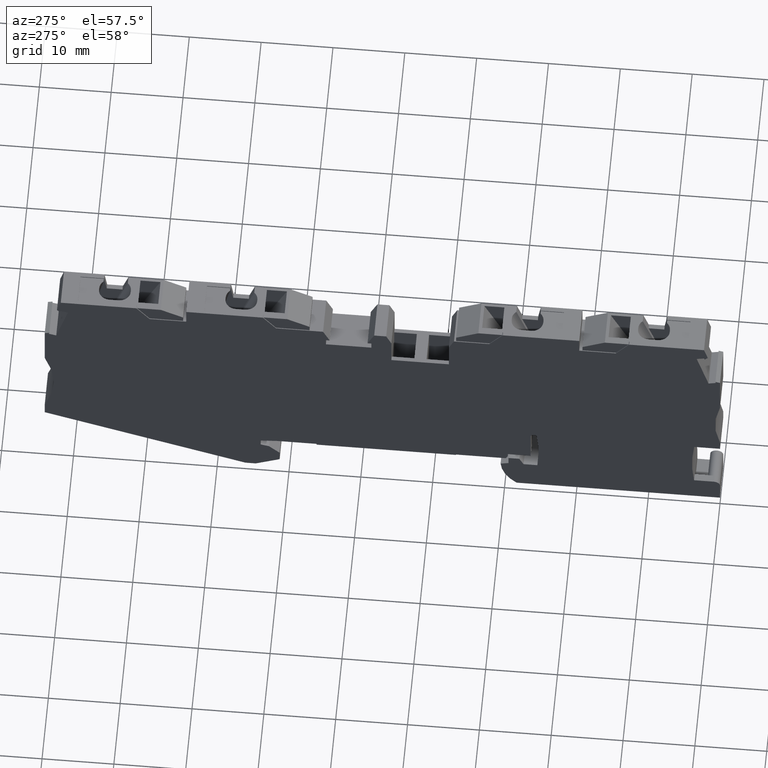
[diagram: clean part render]
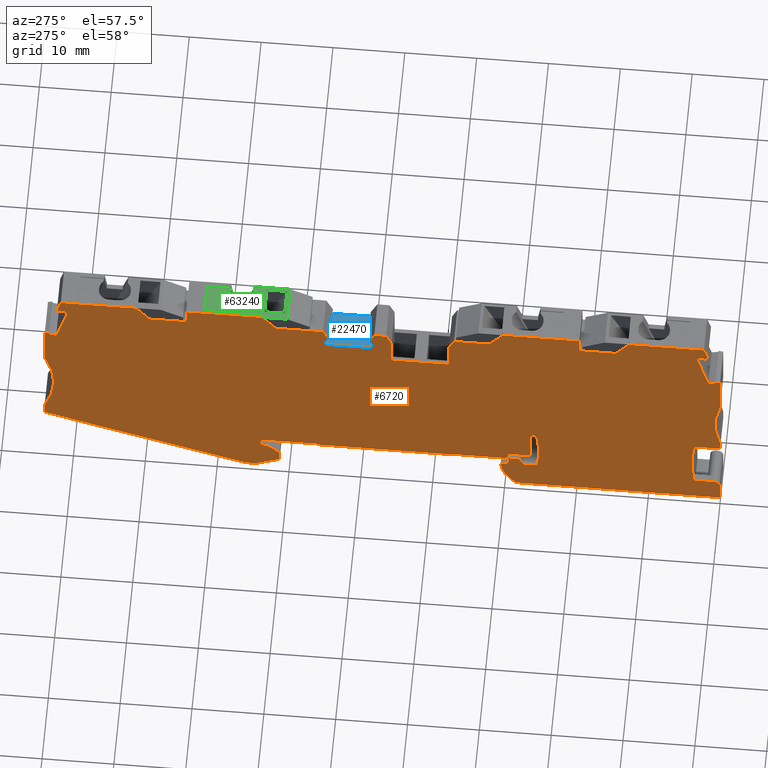
[diagram: same view with three faces highlighted in distinct colors, each labeled with its STEP entity id]
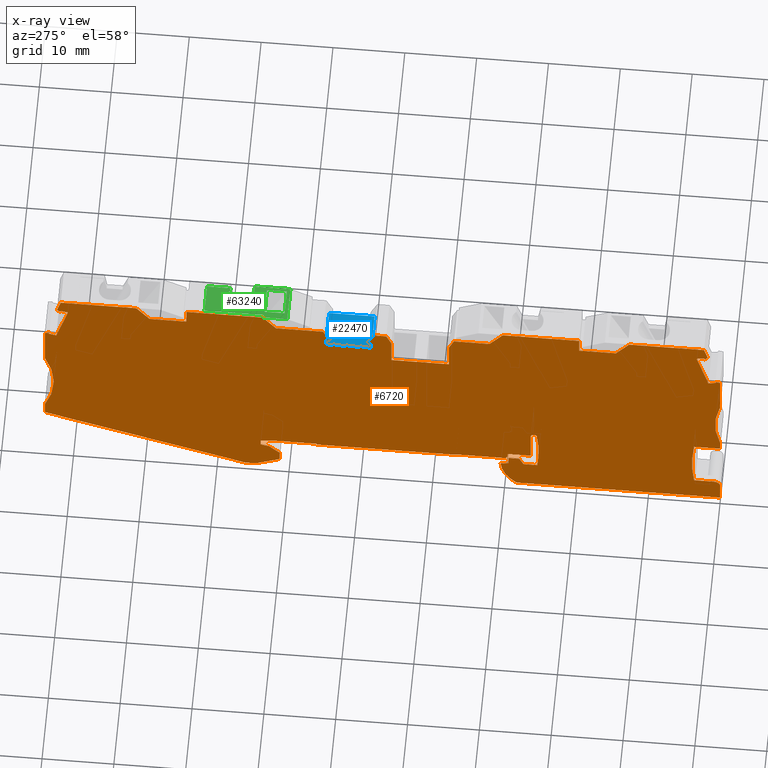
[diagram: x-ray of the same camera — body ghosted, the three highlighted faces saturated]
A machine part, auxiliary view with three faces highlighted in distinct colors.
The next image is the same camera in x-ray (body ghosted, the three faces saturated) — at least one of them is partly hidden behind the body in this view.
Their STEP definitions:

[orange] entity #6720 — the highlighted planar face has unit normal (-1, 0, 0).
#10=CARTESIAN_POINT('',(51.2005685226322,33.1653725649591,
-5.15000000004701));
#20=DIRECTION('',(7.41216508193737E-14,5.86845761098081E-13,-1.));
#30=DIRECTION('',(-0.992546151641485,-0.121869343403826,
-1.45087666858425E-13));
#40=AXIS2_PLACEMENT_3D('',#10,#20,#30);
#50=PLANE('',#40);
#60=CARTESIAN_POINT('',(-1.63215185893147E-12,18.1491444593517,
-5.15000000006688));
#70=DIRECTION('',(0.951056516295154,-0.309016994374947,
-1.10549333441268E-13));
#80=VECTOR('',#70,1.);
#90=LINE('',#60,#80);
#100=CARTESIAN_POINT('',(50.9335437868774,1.59983288405359,
-5.15000000007279));
#110=VERTEX_POINT('',#100);
#120=CARTESIAN_POINT('',(54.4182978726985,0.467567645042212,
-5.1500000000732));
#130=VERTEX_POINT('',#120);
#140=EDGE_CURVE('',#110,#130,#90,.T.);
#150=ORIENTED_EDGE('',*,*,#140,.F.);
#160=CARTESIAN_POINT('',(-2.54876470183464E-12,-6.21415916436365,
-5.15000000008117));
#170=DIRECTION('',(0.992546151641272,0.121869343405557,
1.45408273460483E-13));
#180=VECTOR('',#170,1.);
#190=LINE('',#160,#180);
#200=CARTESIAN_POINT('',(55.857590455135,0.64429055278808,
-5.15000000007299));
#210=VERTEX_POINT('',#200);
#220=EDGE_CURVE('',#130,#210,#190,.T.);
#230=ORIENTED_EDGE('',*,*,#220,.F.);
#240=CARTESIAN_POINT('',(-3.28099021208646E-12,-25.6765009430286,
-5.15000000009259));
#250=DIRECTION('',(0.904601039469285,0.426259263114703,
3.17498382901155E-13));
#260=VECTOR('',#250,1.);
#270=LINE('',#240,#260);
#280=CARTESIAN_POINT('',(82.4574372953299,13.1784692883305,
-5.15000000006365));
#290=VERTEX_POINT('',#280);
#300=EDGE_CURVE('',#210,#290,#270,.T.);
#310=ORIENTED_EDGE('',*,*,#300,.F.);
#320=CARTESIAN_POINT('',(84.0755498602694,3.26859023790299E-13,
-5.15000000007127));
#330=DIRECTION('',(-0.12186934340511,0.992546151641327,
5.73390757286388E-13));
#340=VECTOR('',#330,1.);
#350=LINE('',#320,#340);
#360=CARTESIAN_POINT('',(82.2135822231574,15.1645094743228,
-5.15000000005741));
#370=VERTEX_POINT('',#360);
#380=EDGE_CURVE('',#290,#370,#350,.T.);
#390=ORIENTED_EDGE('',*,*,#380,.F.);
#400=CARTESIAN_POINT('',(95.1276197746273,22.7952128573162,
-5.15000000005707));
#410=DIRECTION('',(-2.47610274017394E-14,-3.00054079505067E-15,1.));
#420=DIRECTION('',(0.992546151641327,0.12186934340511,
2.49421363947495E-14));
#430=AXIS2_PLACEMENT_3D('',#400,#410,#420);
#440=CIRCLE('',#430,15.);
#450=CARTESIAN_POINT('',(80.7511501013408,27.0750632908098,
-5.15000000005741));
#460=VERTEX_POINT('',#450);
#470=EDGE_CURVE('',#460,#370,#440,.T.);
#480=ORIENTED_EDGE('',*,*,#470,.T.);
#490=CARTESIAN_POINT('',(83.8121891997318,2.14490044393084,
-5.15000000006898));
#500=DIRECTION('',(-0.12186934340511,0.992546151641328,
-1.25369758141076E-16));
#510=VECTOR('',#500,1.);
#520=LINE('',#490,#510);
#530=CARTESIAN_POINT('',(79.9711959708161,33.4272799277346,
-5.15000000005196));
#540=VERTEX_POINT('',#530);
#550=EDGE_CURVE('',#460,#540,#520,.T.);
#560=ORIENTED_EDGE('',*,*,#550,.F.);
#570=CARTESIAN_POINT('',(84.3935909987457,32.8057528391582,
-5.1500000001018));
#580=DIRECTION('',(0.990268068742578,-0.139173100952904,
4.79939087970401E-14));
#590=VECTOR('',#580,1.);
#600=LINE('',#570,#590);
#610=CARTESIAN_POINT('',(79.3161911343738,33.5193348541774,
-5.15000000005195));
#620=VERTEX_POINT('',#610);
#630=EDGE_CURVE('',#620,#540,#600,.T.);
#640=ORIENTED_EDGE('',*,*,#630,.T.);
#650=CARTESIAN_POINT('',(88.5328933703175,10.7071963181875,
-5.15000000006885));
#660=DIRECTION('',(0.374606593416575,-0.927183854566521,
6.59579020590538E-15));
#670=VECTOR('',#660,1.);
#680=LINE('',#650,#670);
#690=CARTESIAN_POINT('',(79.4181993646877,33.2668556243879,
-5.15000000005209));
#700=VERTEX_POINT('',#690);
#710=EDGE_CURVE('',#620,#700,#680,.T.);
#720=ORIENTED_EDGE('',*,*,#710,.F.);
#730=CARTESIAN_POINT('',(83.8338176270039,35.0508812056414,
-5.15000000006889));
#740=DIRECTION('',(0.927183854566705,0.374606593416117,
2.41441940387461E-14));
#750=VECTOR('',#740,1.);
#760=LINE('',#730,#750);
#770=CARTESIAN_POINT('',(78.4261126403021,32.8660265694329,
-5.1500000000524));
#780=VERTEX_POINT('',#770);
#790=EDGE_CURVE('',#780,#700,#760,.T.);
#800=ORIENTED_EDGE('',*,*,#790,.T.);
#810=CARTESIAN_POINT('',(87.4844737959632,10.445795959572,
-5.15000000010178));
#820=DIRECTION('',(-0.374606593416094,0.927183854566715,
-1.29656948096796E-14));
#830=VECTOR('',#820,1.);
#840=LINE('',#810,#830);
#850=CARTESIAN_POINT('',(76.0567259369452,38.7304644495677,
-5.15000000004914));
#860=VERTEX_POINT('',#850);
#870=EDGE_CURVE('',#780,#860,#840,.T.);
#880=ORIENTED_EDGE('',*,*,#870,.F.);
#890=CARTESIAN_POINT('',(82.288623918383,41.2483146707968,
-5.15000000006892));
#900=DIRECTION('',(-0.927183854566836,-0.374606593415795,
-2.41441940387486E-14));
#910=VECTOR('',#900,1.);
#920=LINE('',#890,#910);
#930=CARTESIAN_POINT('',(77.0488126613319,39.1312935045226,
-5.15000000004883));
#940=VERTEX_POINT('',#930);
#950=EDGE_CURVE('',#940,#860,#920,.T.);
#960=ORIENTED_EDGE('',*,*,#950,.T.);
#970=CARTESIAN_POINT('',(88.5328933702817,10.7071963181785,
-5.15000000006885));
#980=DIRECTION('',(-0.374606593415338,0.927183854567021,
-6.59579020587315E-15));
#990=VECTOR('',#980,1.);
#1000=LINE('',#970,#990);
#1010=CARTESIAN_POINT('',(77.1508208916462,38.8788142747309,
-5.15000000004896));
#1020=VERTEX_POINT('',#1010);
#1030=EDGE_CURVE('',#1020,#940,#1000,.T.);
#1040=ORIENTED_EDGE('',*,*,#1030,.T.);
#1050=CARTESIAN_POINT('',(81.4935363772038,44.4372366214501,
-5.15000000010187));
#1060=DIRECTION('',(0.615661475326719,0.788010753605894,
3.50143361995355E-14));
#1070=VECTOR('',#1060,1.);
#1080=LINE('',#1050,#1070);
#1090=CARTESIAN_POINT('',(77.5276003492663,39.3610699886925,
-5.15000000004865));
#1100=VERTEX_POINT('',#1090);
#1110=EDGE_CURVE('',#1020,#1100,#1080,.T.);
#1120=ORIENTED_EDGE('',*,*,#1110,.F.);
#1130=CARTESIAN_POINT('',(89.0522040005949,10.8366750004898,
-5.1500000001017));
#1140=DIRECTION('',(-0.374606593416298,0.927183854566633,
-1.29518170218772E-14));
#1150=VECTOR('',#1140,1.);
#1160=LINE('',#1130,#1150);
#1170=CARTESIAN_POINT('',(76.7664159758295,41.2450674244096,
-5.15000000004761));
#1180=VERTEX_POINT('',#1170);
#1190=EDGE_CURVE('',#1100,#1180,#1160,.T.);
#1200=ORIENTED_EDGE('',*,*,#1190,.F.);
#1210=CARTESIAN_POINT('',(82.125376322098,41.9030650174223,
-5.15000000006892));
#1220=DIRECTION('',(0.99254615164132,0.121869343405168,
2.50286166997453E-14));
#1230=VECTOR('',#1220,1.);
#1240=LINE('',#1210,#1230);
#1250=CARTESIAN_POINT('',(66.3229877196629,39.962775671655,
-5.15000000004184));
#1260=VERTEX_POINT('',#1250);
#1270=EDGE_CURVE('',#1260,#1180,#1240,.T.);
#1280=ORIENTED_EDGE('',*,*,#1270,.T.);
#1290=CARTESIAN_POINT('',(43.6250560928359,-0.477025041583218,
-5.15000000006994));
#1300=DIRECTION('',(0.489450898605579,0.872030858315343,
1.47204826611017E-14));
#1310=VECTOR('',#1300,1.);
#1320=LINE('',#1290,#1310);
#1330=CARTESIAN_POINT('',(64.8046171261849,37.2575686414021,
-5.15000000004354));
#1340=VERTEX_POINT('',#1330);
#1350=EDGE_CURVE('',#1340,#1260,#1320,.T.);
#1360=ORIENTED_EDGE('',*,*,#1350,.T.);
#1370=CARTESIAN_POINT('',(-0.0992546151653457,29.2883752487445,
-5.15000000006028));
#1380=DIRECTION('',(-0.992546151641327,-0.12186934340511,
-1.45408273460483E-13));
#1390=VECTOR('',#1380,1.);
#1400=LINE('',#1370,#1390);
#1410=CARTESIAN_POINT('',(59.72946532427,36.6344183558886,
-5.15000000004428));
#1420=VERTEX_POINT('',#1410);
#1430=EDGE_CURVE('',#1340,#1420,#1400,.T.);
#1440=ORIENTED_EDGE('',*,*,#1430,.F.);
#1450=CARTESIAN_POINT('',(64.2283544797226,-0.00609346716925809,
-5.15000000007268));
#1460=DIRECTION('',(-0.121869343405168,0.99254615164132,
5.73383818392483E-13));
#1470=VECTOR('',#1460,1.);
#1480=LINE('',#1450,#1470);
#1490=CARTESIAN_POINT('',(59.4247919657574,39.1157837349896,
-5.15000000004285));
#1500=VERTEX_POINT('',#1490);
#1510=EDGE_CURVE('',#1420,#1500,#1480,.T.);
#1520=ORIENTED_EDGE('',*,*,#1510,.F.);
#1530=CARTESIAN_POINT('',(-0.099254615165251,31.8071498123857,
-5.1500000000588));
#1540=DIRECTION('',(0.99254615164132,0.121869343405168,
1.45408273460483E-13));
#1550=VECTOR('',#1540,1.);
#1560=LINE('',#1530,#1550);
#1570=CARTESIAN_POINT('',(48.8541754507756,37.8178752277244,
-5.15000000004439));
#1580=VERTEX_POINT('',#1570);
#1590=EDGE_CURVE('',#1580,#1500,#1560,.T.);
#1600=ORIENTED_EDGE('',*,*,#1590,.T.);
#1610=CARTESIAN_POINT('',(26.1562438239486,-2.62192548551382,
-5.1500000000705));
#1620=DIRECTION('',(0.489450898605579,0.872030858315343,
1.47204826611017E-14));
#1630=VECTOR('',#1620,1.);
#1640=LINE('',#1610,#1630);
#1650=CARTESIAN_POINT('',(47.3358048572975,35.1126681974713,
-5.15000000004609));
#1660=VERTEX_POINT('',#1650);
#1670=EDGE_CURVE('',#1660,#1580,#1640,.T.);
#1680=ORIENTED_EDGE('',*,*,#1670,.T.);
#1690=CARTESIAN_POINT('',(-1.14655395558325E-12,29.3005621830843,
-5.15000000007111));
#1700=DIRECTION('',(-0.992546151641327,-0.12186934340511,
-2.50403622964061E-14));
#1710=VECTOR('',#1700,1.);
#1720=LINE('',#1690,#1710);
#1730=CARTESIAN_POINT('',(40.8310435482311,34.3139839363598,
-5.15000000005435));
#1740=VERTEX_POINT('',#1730);
#1750=EDGE_CURVE('',#1660,#1740,#1720,.T.);
#1760=ORIENTED_EDGE('',*,*,#1750,.F.);
#1770=CARTESIAN_POINT('',(30.5211237682836,1.58665719895707E-12,
-5.15000000007043));
#1780=DIRECTION('',(0.287750497361325,0.957705409438786,
9.95947716779486E-15));
#1790=VECTOR('',#1780,1.);
#1800=LINE('',#1770,#1790);
#1810=CARTESIAN_POINT('',(40.1694208776444,32.1119387046792,
-5.15000000005569));
#1820=VERTEX_POINT('',#1810);
#1830=EDGE_CURVE('',#1820,#1740,#1800,.T.);
#1840=ORIENTED_EDGE('',*,*,#1830,.T.);
#1850=CARTESIAN_POINT('',(-1.22613842412255E-12,27.179754000494,
-5.15000000007111));
#1860=DIRECTION('',(-0.992546151641324,-0.121869343405136,
-2.50403622964061E-14));
#1870=VECTOR('',#1860,1.);
#1880=LINE('',#1850,#1870);
#1890=CARTESIAN_POINT('',(40.6933844696089,32.1762733442477,
-5.15000000005561));
#1900=VERTEX_POINT('',#1890);
#1910=EDGE_CURVE('',#1900,#1820,#1880,.T.);
#1920=ORIENTED_EDGE('',*,*,#1910,.T.);
#1930=CARTESIAN_POINT('',(44.6441340636737,1.05668363616181E-12,
-5.15000000007008));
#1940=DIRECTION('',(-0.121869343405136,0.992546151641324,
-1.25369758141743E-16));
#1950=VECTOR('',#1940,1.);
#1960=LINE('',#1930,#1950);
#1970=CARTESIAN_POINT('',(40.8237846670524,31.1142489619915,
-5.15000000005623));
#1980=VERTEX_POINT('',#1970);
#1990=EDGE_CURVE('',#1980,#1900,#1960,.T.);
#2000=ORIENTED_EDGE('',*,*,#1990,.T.);
#2010=CARTESIAN_POINT('',(-1.26659228699043E-12,26.1017184872555,
-5.15000000007112));
#2020=DIRECTION('',(0.992546151641331,0.121869343405079,
2.50403622964061E-14));
#2030=VECTOR('',#2020,1.);
#2040=LINE('',#2010,#2030);
#2050=CARTESIAN_POINT('',(34.5459302579209,30.3434253649544,
-5.15000000005715));
#2060=VERTEX_POINT('',#2050);
#2070=EDGE_CURVE('',#2060,#1980,#2040,.T.);
#2080=ORIENTED_EDGE('',*,*,#2070,.T.);
#2090=CARTESIAN_POINT('',(38.2716344176464,1.29581511526432E-12,
-5.15000000007024));
#2100=DIRECTION('',(0.121869343405136,-0.992546151641324,
1.25369758141743E-16));
#2110=VECTOR('',#2100,1.);
#2120=LINE('',#2090,#2110);
#2130=CARTESIAN_POINT('',(34.4155300604775,31.4054497472102,
-5.15000000005653));
#2140=VERTEX_POINT('',#2130);
#2150=EDGE_CURVE('',#2140,#2060,#2120,.T.);
#2160=ORIENTED_EDGE('',*,*,#2150,.T.);
#2170=CARTESIAN_POINT('',(-1.22613842412255E-12,27.179754000494,
-5.15000000007111));
#2180=DIRECTION('',(-0.992546151641324,-0.121869343405136,
-2.50403622964061E-14));
#2190=VECTOR('',#2180,1.);
#2200=LINE('',#2170,#2190);
#2210=CARTESIAN_POINT('',(34.9394936524406,31.4697843867785,
-5.15000000005646));
#2220=VERTEX_POINT('',#2210);
#2230=EDGE_CURVE('',#2220,#2140,#2200,.T.);
#2240=ORIENTED_EDGE('',*,*,#2230,.T.);
#2250=CARTESIAN_POINT('',(53.6422195780374,7.19025634174782E-13,
-5.15000000006986));
#2260=DIRECTION('',(0.510892985900211,-0.859644320028911,
1.01890289076771E-14));
#2270=VECTOR('',#2260,1.);
#2280=LINE('',#2250,#2270);
#2290=CARTESIAN_POINT('',(33.7648010461208,33.4463584535049,
-5.15000000005538));
#2300=VERTEX_POINT('',#2290);
#2310=EDGE_CURVE('',#2300,#2220,#2280,.T.);
#2320=ORIENTED_EDGE('',*,*,#2310,.T.);
#2330=CARTESIAN_POINT('',(-1.15365938294104E-12,29.3005621830791,
-5.15000000007111));
#2340=DIRECTION('',(-0.992546151641309,-0.121869343405257,
-2.50403622964062E-14));
#2350=VECTOR('',#2340,1.);
#2360=LINE('',#2330,#2350);
#2370=CARTESIAN_POINT('',(32.1054168262366,33.242611690697,
-5.15000000005563));
#2380=VERTEX_POINT('',#2370);
#2390=EDGE_CURVE('',#2300,#2380,#2360,.T.);
#2400=ORIENTED_EDGE('',*,*,#2390,.F.);
#2410=CARTESIAN_POINT('',(22.628984575643,1.88281396996538E-12,
-5.15000000007063));
#2420=DIRECTION('',(-0.274147194873179,-0.961687743263461,
-9.63283387656871E-15));
#2430=VECTOR('',#2420,1.);
#2440=LINE('',#2410,#2430);
#2450=CARTESIAN_POINT('',(31.5994505786971,31.4677201438811,
-5.15000000005671));
#2460=VERTEX_POINT('',#2450);
#2470=EDGE_CURVE('',#2380,#2460,#2440,.T.);
#2480=ORIENTED_EDGE('',*,*,#2470,.F.);
#2490=CARTESIAN_POINT('',(35.4632007791786,1.40120309913761E-12,
-5.15000000007031));
#2500=DIRECTION('',(0.121869343405142,-0.992546151641324,
1.25369758141894E-16));
#2510=VECTOR('',#2500,1.);
#2520=LINE('',#2490,#2510);
#2530=CARTESIAN_POINT('',(32.1234887553389,27.1997716918253,
-5.15000000005917));
#2540=VERTEX_POINT('',#2530);
#2550=EDGE_CURVE('',#2460,#2540,#2520,.T.);
#2560=ORIENTED_EDGE('',*,*,#2550,.F.);
#2570=CARTESIAN_POINT('',(-1.37339804643165E-12,23.2555032303318,
-5.15000000007112));
#2580=DIRECTION('',(-0.992546151641324,-0.121869343405136,
-2.50403622964061E-14));
#2590=VECTOR('',#2580,1.);
#2600=LINE('',#2570,#2590);
#2610=CARTESIAN_POINT('',(24.1831195422086,26.2248169445842,
-5.15000000006034));
#2620=VERTEX_POINT('',#2610);
#2630=EDGE_CURVE('',#2540,#2620,#2600,.T.);
#2640=ORIENTED_EDGE('',*,*,#2630,.F.);
#2650=CARTESIAN_POINT('',(27.4031221755072,1.71076731429297E-12,
-5.15000000010402));
#2660=DIRECTION('',(0.121869343405144,-0.992546151641323,
1.26713462326608E-16));
#2670=VECTOR('',#2660,1.);
#2680=LINE('',#2650,#2670);
#2690=CARTESIAN_POINT('',(23.6590813655666,30.4927653966404,
-5.15000000005787));
#2700=VERTEX_POINT('',#2690);
#2710=EDGE_CURVE('',#2700,#2620,#2680,.T.);
#2720=ORIENTED_EDGE('',*,*,#2710,.T.);
#2730=CARTESIAN_POINT('',(41.2011308712342,1.19298961145134E-12,
-5.15000000007017));
#2740=DIRECTION('',(-0.498657173381242,0.866799298243504,
-9.86466764618313E-15));
#2750=VECTOR('',#2740,1.);
#2760=LINE('',#2730,#2750);
#2770=CARTESIAN_POINT('',(22.7387593504496,32.0925307654054,
-5.150000000057));
#2780=VERTEX_POINT('',#2770);
#2790=EDGE_CURVE('',#2700,#2780,#2760,.T.);
#2800=ORIENTED_EDGE('',*,*,#2790,.F.);
#2810=CARTESIAN_POINT('',(-1.13234310086805E-12,29.3005621830843,
-5.15000000007111));
#2820=DIRECTION('',(0.992546151641327,0.12186934340511,
2.50394313100733E-14));
#2830=VECTOR('',#2820,1.);
#2840=LINE('',#2810,#2830);
#2850=CARTESIAN_POINT('',(17.8308512977738,31.4899154302059,
-5.15000000005772));
#2860=VERTEX_POINT('',#2850);
#2870=EDGE_CURVE('',#2860,#2780,#2840,.T.);
#2880=ORIENTED_EDGE('',*,*,#2870,.T.);
#2890=CARTESIAN_POINT('',(47.5101132863039,9.56241650627543E-13,
-5.15000000007001));
#2900=DIRECTION('',(-0.68587547340398,0.727718925810555,
-1.49273732731986E-14));
#2910=VECTOR('',#2900,1.);
#2920=LINE('',#2890,#2910);
#2930=CARTESIAN_POINT('',(15.70313398727,33.7474391581558,
-5.15000000005655));
#2940=VERTEX_POINT('',#2930);
#2950=EDGE_CURVE('',#2860,#2940,#2920,.T.);
#2960=ORIENTED_EDGE('',*,*,#2950,.F.);
#2970=CARTESIAN_POINT('',(-1.11784255141336E-12,31.8193367467299,
-5.15000000005885));
#2980=DIRECTION('',(-0.992546151641327,-0.12186934340511,
-1.45408273460483E-13));
#2990=VECTOR('',#2980,1.);
#3000=LINE('',#2970,#2990);
#3010=CARTESIAN_POINT('',(5.13251747228711,32.4495306508911,
-5.1500000000581));
#3020=VERTEX_POINT('',#3010);
#3030=EDGE_CURVE('',#2940,#3020,#3000,.T.);
#3040=ORIENTED_EDGE('',*,*,#3030,.F.);
#3050=CARTESIAN_POINT('',(9.11681884476174,3.14700757990334E-12,
-5.15000000007685));
#3060=DIRECTION('',(0.121869343405148,-0.992546151641322,
-5.73383818392484E-13));
#3070=VECTOR('',#3060,1.);
#3080=LINE('',#3050,#3070);
#3090=CARTESIAN_POINT('',(5.43719083079988,29.9681652717886,
-5.15000000005953));
#3100=VERTEX_POINT('',#3090);
#3110=EDGE_CURVE('',#3020,#3100,#3080,.T.);
#3120=ORIENTED_EDGE('',*,*,#3110,.F.);
#3130=CARTESIAN_POINT('',(-1.21260560773257E-12,29.3005621830836,
-5.15000000006033));
#3140=DIRECTION('',(0.992546151641327,0.12186934340511,
1.45408273460483E-13));
#3150=VECTOR('',#3140,1.);
#3160=LINE('',#3130,#3150);
#3170=CARTESIAN_POINT('',(0.362039028886562,29.3450149862753,
-5.15000000006028));
#3180=VERTEX_POINT('',#3170);
#3190=EDGE_CURVE('',#3180,#3100,#3160,.T.);
#3200=ORIENTED_EDGE('',*,*,#3190,.T.);
#3210=CARTESIAN_POINT('',(30.0413010174166,-2.14490044392964,
-5.15000000006138));
#3220=DIRECTION('',(-0.68587547340398,0.727718925810555,
-1.49273732731986E-14));
#3230=VECTOR('',#3220,1.);
#3240=LINE('',#3210,#3230);
#3250=CARTESIAN_POINT('',(-1.76567828161728,31.6025387142252,
-5.15000000005911));
#3260=VERTEX_POINT('',#3250);
#3270=EDGE_CURVE('',#3180,#3260,#3240,.T.);
#3280=ORIENTED_EDGE('',*,*,#3270,.F.);
#3290=CARTESIAN_POINT('',(-17.4688122688883,29.6744363027993,
-5.15000000006247));
#3300=DIRECTION('',(-0.992546151641327,-0.12186934340511,
-2.50394313100733E-14));
#3310=VECTOR('',#3300,1.);
#3320=LINE('',#3290,#3310);
#3330=CARTESIAN_POINT('',(-12.1098519226198,30.3324338958117,
-5.15000000006063));
#3340=VERTEX_POINT('',#3330);
#3350=EDGE_CURVE('',#3260,#3340,#3320,.T.);
#3360=ORIENTED_EDGE('',*,*,#3350,.F.);
#3370=CARTESIAN_POINT('',(-16.6742435996497,-2.14490044392789,
-5.15000000009541));
#3380=DIRECTION('',(0.139173100960494,0.990268068741511,
2.25907981490279E-18));
#3390=VECTOR('',#3380,1.);
#3400=LINE('',#3370,#3390);
#3410=CARTESIAN_POINT('',(-12.39264563612,28.3202520690979,
-5.15000000006183));
#3420=VERTEX_POINT('',#3410);
#3430=EDGE_CURVE('',#3420,#3340,#3400,.T.);
#3440=ORIENTED_EDGE('',*,*,#3430,.T.);
#3450=CARTESIAN_POINT('',(-17.4688122688882,32.2861880970218,
-5.15000000009541));
#3460=DIRECTION('',(-0.78801075360754,0.615661475324612,
-3.92405713910446E-16));
#3470=VECTOR('',#3460,1.);
#3480=LINE('',#3450,#3470);
#3490=CARTESIAN_POINT('',(-11.9103899221574,27.9434726114791,
-5.15000000006201));
#3500=VERTEX_POINT('',#3490);
#3510=EDGE_CURVE('',#3500,#3420,#3480,.T.);
#3520=ORIENTED_EDGE('',*,*,#3510,.T.);
#3530=CARTESIAN_POINT('',(-16.1390349861827,-2.14490044392791,
-5.15000000006253));
#3540=DIRECTION('',(0.139173100959469,0.990268068741655,
6.35828589576885E-15));
#3550=VECTOR('',#3540,1.);
#3560=LINE('',#3530,#3550);
#3570=CARTESIAN_POINT('',(-11.8724920261091,28.213130153564,
-5.15000000006185));
#3580=VERTEX_POINT('',#3570);
#3590=EDGE_CURVE('',#3500,#3580,#3560,.T.);
#3600=ORIENTED_EDGE('',*,*,#3590,.F.);
#3610=CARTESIAN_POINT('',(-17.4688122688883,28.9996416717454,
-5.15000000006247));
#3620=DIRECTION('',(0.990268068741586,-0.139173100959957,
2.42190292353126E-14));
#3630=VECTOR('',#3620,1.);
#3640=LINE('',#3610,#3630);
#3650=CARTESIAN_POINT('',(-10.8129051925554,28.0642149355368,
-5.15000000006186));
#3660=VERTEX_POINT('',#3650);
#3670=EDGE_CURVE('',#3580,#3660,#3640,.T.);
#3680=ORIENTED_EDGE('',*,*,#3670,.F.);
#3690=CARTESIAN_POINT('',(-15.0585194836128,-2.14490044392795,
-5.15000000009541));
#3700=DIRECTION('',(0.139173100960276,0.990268068741541,
-1.16187079982452E-17));
#3710=VECTOR('',#3700,1.);
#3720=LINE('',#3690,#3710);
#3730=CARTESIAN_POINT('',(-11.6931750561292,21.8007694007463,
-5.1500000000656));
#3740=VERTEX_POINT('',#3730);
#3750=EDGE_CURVE('',#3740,#3660,#3720,.T.);
#3760=ORIENTED_EDGE('',*,*,#3750,.T.);
#3770=CARTESIAN_POINT('',(-17.4688122688886,22.6124822755671,
-5.15000000006249));
#3780=DIRECTION('',(-0.990268068741538,0.139173100960301,
-2.42190292353103E-14));
#3790=VECTOR('',#3780,1.);
#3800=LINE('',#3770,#3790);
#3810=CARTESIAN_POINT('',(-12.7527618896818,21.9496846187737,
-5.15000000006559));
#3820=VERTEX_POINT('',#3810);
#3830=EDGE_CURVE('',#3740,#3820,#3800,.T.);
#3840=ORIENTED_EDGE('',*,*,#3830,.F.);
#3850=CARTESIAN_POINT('',(-16.1390349862196,-2.14490044392791,
-5.15000000006253));
#3860=DIRECTION('',(-0.13917310096079,-0.990268068741469,
-6.3582858958012E-15));
#3870=VECTOR('',#3860,1.);
#3880=LINE('',#3850,#3870);
#3890=CARTESIAN_POINT('',(-12.7148639936335,22.2193421608562,
-5.15000000006543));
#3900=VERTEX_POINT('',#3890);
#3910=EDGE_CURVE('',#3900,#3820,#3880,.T.);
#3920=ORIENTED_EDGE('',*,*,#3910,.T.);
#3930=CARTESIAN_POINT('',(-17.4688122688887,20.2986223814295,
-5.15000000009541));
#3940=DIRECTION('',(-0.927183854569503,-0.374606593409191,
-3.66909218123641E-16));
#3950=VECTOR('',#3940,1.);
#3960=LINE('',#3930,#3950);
#3970=CARTESIAN_POINT('',(-13.3281422848193,21.971561647487,
-5.15000000006562));
#3980=VERTEX_POINT('',#3970);
#3990=EDGE_CURVE('',#3900,#3980,#3960,.T.);
#4000=ORIENTED_EDGE('',*,*,#3990,.F.);
#4010=CARTESIAN_POINT('',(-10.3670130763943,-2.14490044392813,
-5.1500000000954));
#4020=DIRECTION('',(-0.12186934340511,0.992546151641327,
-1.2671346232575E-16));
#4030=VECTOR('',#4020,1.);
#4040=LINE('',#4010,#4030);
#4050=CARTESIAN_POINT('',(-12.5481881546684,15.6193450136062,
-5.15000000006929));
#4060=VERTEX_POINT('',#4050);
#4070=EDGE_CURVE('',#4060,#3980,#4040,.T.);
#4080=ORIENTED_EDGE('',*,*,#4070,.T.);
#4090=CARTESIAN_POINT('',(-26.2022063583376,9.40904816934251,
-5.15000000007395));
#4100=DIRECTION('',(-2.48736047506293E-14,-2.91886266429657E-15,1.));
#4110=DIRECTION('',(-0.992546151641323,-0.121869343405144,
-2.50439205489866E-14));
#4120=AXIS2_PLACEMENT_3D('',#4090,#4100,#4110);
#4130=CIRCLE('',#4120,15.);
#4140=CARTESIAN_POINT('',(-11.451364064022,6.68642964883118,
-5.15000000007445));
#4150=VERTEX_POINT('',#4140);
#4160=EDGE_CURVE('',#4150,#4060,#4130,.T.);
#4170=ORIENTED_EDGE('',*,*,#4160,.T.);
#4180=CARTESIAN_POINT('',(-10.6303737355825,3.88994994149725E-12,
-5.15000000007832));
#4190=DIRECTION('',(0.121869343405148,-0.992546151641322,
-5.73383818392484E-13));
#4200=VECTOR('',#4190,1.);
#4210=LINE('',#4180,#4200);
#4220=CARTESIAN_POINT('',(-11.2563731145735,5.09835580620357,
-5.15000000007537));
#4230=VERTEX_POINT('',#4220);
#4240=EDGE_CURVE('',#4150,#4230,#4210,.T.);
#4250=ORIENTED_EDGE('',*,*,#4240,.F.);
#4260=CARTESIAN_POINT('',(-2.07115889798503E-12,6.48046463643549,
-5.15000000007372));
#4270=DIRECTION('',(-0.992546151641322,-0.121869343405148,
-1.45408273460483E-13));
#4280=VECTOR('',#4270,1.);
#4290=LINE('',#4260,#4280);
#4300=CARTESIAN_POINT('',(-7.683206968647,5.53708544246428,
-5.15000000009808));
#4310=VERTEX_POINT('',#4300);
#4320=EDGE_CURVE('',#4310,#4230,#4290,.T.);
#4330=ORIENTED_EDGE('',*,*,#4320,.T.);
#4340=CARTESIAN_POINT('',(-38.3066176594339,-2.60566433329628,
-5.15000000008191));
#4350=DIRECTION('',(5.11484905320667E-13,6.28767212301405E-14,1.));
#4360=DIRECTION('',(0.992546151641322,0.121869343405148,
-5.15335119130525E-13));
#4370=AXIS2_PLACEMENT_3D('',#4340,#4350,#4360);
#4380=CIRCLE('',#4370,31.6874999999566);
#4390=CARTESIAN_POINT('',(-6.62153597596452,-2.99714224981677,
-5.15000000009809));
#4400=VERTEX_POINT('',#4390);
#4410=EDGE_CURVE('',#4400,#4310,#4380,.T.);
#4420=ORIENTED_EDGE('',*,*,#4410,.T.);
#4430=CARTESIAN_POINT('',(-2.397143811723E-12,-2.18411986250547,
-5.15000000007881));
#4440=DIRECTION('',(-0.992546151641322,-0.121869343405148,
-1.45408273460483E-13));
#4450=VECTOR('',#4440,1.);
#4460=LINE('',#4430,#4450);
#4470=CARTESIAN_POINT('',(-9.31500522479441,-3.32785868883982,
-5.15000000008069));
#4480=VERTEX_POINT('',#4470);
#4490=EDGE_CURVE('',#4400,#4480,#4460,.T.);
#4500=ORIENTED_EDGE('',*,*,#4490,.F.);
#4510=CARTESIAN_POINT('',(-9.20532281572975,-4.22115022531683,
-5.15000000003736));
#4520=DIRECTION('',(5.11484905320667E-13,6.28767212301405E-14,1.));
#4530=DIRECTION('',(0.992546151641322,0.121869343405148,
-5.15335119130526E-13));
#4540=AXIS2_PLACEMENT_3D('',#4510,#4520,#4530);
#4550=CIRCLE('',#4540,0.899999999999821);
#4560=CARTESIAN_POINT('',(-10.0986143522068,-4.33083263438148,
-5.15000000008082));
#4570=VERTEX_POINT('',#4560);
#4580=EDGE_CURVE('',#4480,#4570,#4550,.T.);
#4590=ORIENTED_EDGE('',*,*,#4580,.F.);
#4600=CARTESIAN_POINT('',(-10.6303737355621,3.88994994149648E-12,
-5.15000000007832));
#4610=DIRECTION('',(0.121869343404785,-0.992546151641367,
-5.73383818392493E-13));
#4620=VECTOR('',#4610,1.);
#4630=LINE('',#4600,#4620);
#4640=CARTESIAN_POINT('',(-9.72081938764914,-7.40772570449235,
-5.15000000008259));
#4650=VERTEX_POINT('',#4640);
#4660=EDGE_CURVE('',#4570,#4650,#4630,.T.);
#4670=ORIENTED_EDGE('',*,*,#4660,.F.);
#4680=CARTESIAN_POINT('',(-2.54876470183443E-12,-6.21415916435809,
-5.15000000008117));
#4690=DIRECTION('',(0.992546151641253,0.121869343405714,
1.45408273460483E-13));
#4700=VECTOR('',#4690,1.);
#4710=LINE('',#4680,#4700);
#4720=CARTESIAN_POINT('',(18.3981893210454,-3.95514556715407,
-5.15000000007853));
#4730=VERTEX_POINT('',#4720);
#4740=EDGE_CURVE('',#4650,#4730,#4710,.T.);
#4750=ORIENTED_EDGE('',*,*,#4740,.F.);
#4760=CARTESIAN_POINT('',(13.4567200165382,0.419997986218102,
-5.15000000007628));
#4770=DIRECTION('',(5.11484905320667E-13,6.28767212301405E-14,1.));
#4780=DIRECTION('',(1.,2.08166817118832E-16,-5.11484905320753E-13));
#4790=AXIS2_PLACEMENT_3D('',#4760,#4770,#4780);
#4800=CIRCLE('',#4790,6.6);
#4810=CARTESIAN_POINT('',(20.0402260336684,0.88631174583819,
-5.15000000007967));
#4820=VERTEX_POINT('',#4810);
#4830=EDGE_CURVE('',#4730,#4820,#4800,.T.);
#4840=ORIENTED_EDGE('',*,*,#4830,.F.);
#4850=CARTESIAN_POINT('',(-1.78486427193089E-12,3.70278184023677,
-5.15000000004257));
#4860=DIRECTION('',(-0.990268068741559,0.139173100960152,
4.97756421110636E-13));
#4870=VECTOR('',#4860,1.);
#4880=LINE('',#4850,#4870);
#4890=CARTESIAN_POINT('',(18.9125049955011,1.04480260185395,
-5.1500000000755));
#4900=VERTEX_POINT('',#4890);
#4910=EDGE_CURVE('',#4820,#4900,#4880,.T.);
#4920=ORIENTED_EDGE('',*,*,#4910,.F.);
#4930=CARTESIAN_POINT('',(19.0407906241999,7.93891440543852E-13,
-5.15000000005208));
#4940=DIRECTION('',(-0.121869343405174,0.992546151641319,
-7.37181117023018E-17));
#4950=VECTOR('',#4940,1.);
#4960=LINE('',#4930,#4950);
#4970=CARTESIAN_POINT('',(18.7540748490745,2.33511259898705,
-5.15000000007476));
#4980=VERTEX_POINT('',#4970);
#4990=EDGE_CURVE('',#4900,#4980,#4960,.T.);
#5000=ORIENTED_EDGE('',*,*,#4990,.F.);
#5010=CARTESIAN_POINT('',(-1.77373984298533E-12,0.0324017535025053,
-5.15000000004234));
#5020=DIRECTION('',(-0.992546151641319,-0.121869343405174,
5.15335119130526E-13));
#5030=VECTOR('',#5020,1.);
#5040=LINE('',#5010,#5030);
#5050=CARTESIAN_POINT('',(17.2652556216125,2.15230858387928,
-5.15000000007498));
#5060=VERTEX_POINT('',#5050);
#5070=EDGE_CURVE('',#4980,#5060,#5040,.T.);
#5080=ORIENTED_EDGE('',*,*,#5070,.F.);
#5090=CARTESIAN_POINT('',(16.5752548948014,7.93392775023853E-13,
-5.15000000005081));
#5100=DIRECTION('',(-0.305282167327245,-0.952261937867928,
2.16022328856885E-13));
#5110=VECTOR('',#5100,1.);
#5120=LINE('',#5090,#5110);
#5130=CARTESIAN_POINT('',(16.8281580770523,0.788876980702631,
-5.15000000007581));
#5140=VERTEX_POINT('',#5130);
#5150=EDGE_CURVE('',#5060,#5140,#5120,.T.);
#5160=ORIENTED_EDGE('',*,*,#5150,.F.);
#5170=CARTESIAN_POINT('',(-2.36302911144812E-12,-1.27736101959365,
-5.15000000007827));
#5180=DIRECTION('',(-0.992546151641319,-0.121869343405174,
-1.45408273460483E-13));
#5190=VECTOR('',#5180,1.);
#5200=LINE('',#5170,#5190);
#5210=CARTESIAN_POINT('',(14.9200659632027,0.554592728341256,
-5.15000000007609));
#5220=VERTEX_POINT('',#5210);
#5230=EDGE_CURVE('',#5140,#5220,#5200,.T.);
#5240=ORIENTED_EDGE('',*,*,#5230,.F.);
#5250=CARTESIAN_POINT('',(45.7868550382898,7.71971578669369,
-5.15000000006959));
#5260=DIRECTION('',(5.11484905320667E-13,6.28767212301405E-14,1.));
#5270=DIRECTION('',(0.992546151641322,0.121869343405148,
-5.15335119130525E-13));
#5280=AXIS2_PLACEMENT_3D('',#5250,#5260,#5270);
#5290=CIRCLE('',#5280,31.6874999999566);
#5300=CARTESIAN_POINT('',(14.0996636237165,7.8595603555728,
-5.15000000007163));
#5310=VERTEX_POINT('',#5300);
#5320=EDGE_CURVE('',#5310,#5220,#5290,.T.);
#5330=ORIENTED_EDGE('',*,*,#5320,.T.);
#5340=CARTESIAN_POINT('',(14.4996597283586,7.8577950592398,
-5.15000000005025));
#5350=DIRECTION('',(5.11484905320667E-13,6.28767212301405E-14,1.));
#5360=DIRECTION('',(1.,2.08166817118832E-16,-5.11484905320753E-13));
#5370=AXIS2_PLACEMENT_3D('',#5340,#5350,#5360);
#5380=CIRCLE('',#5370,0.4);
#5390=CARTESIAN_POINT('',(14.4509119909966,8.25481351989634,
-5.15000000007183));
#5400=VERTEX_POINT('',#5390);
#5410=EDGE_CURVE('',#5400,#5310,#5380,.T.);
#5420=ORIENTED_EDGE('',*,*,#5410,.T.);
#5430=CARTESIAN_POINT('',(-1.78694180368178E-12,6.48046463643495,
-5.15000000004274));
#5440=DIRECTION('',(-0.992546151641322,-0.121869343405148,
5.15335119130526E-13));
#5450=VECTOR('',#5440,1.);
#5460=LINE('',#5430,#5450);
#5470=CARTESIAN_POINT('',(14.5001995205354,8.26086526756862,
-5.1500000000716));
#5480=VERTEX_POINT('',#5470);
#5490=EDGE_CURVE('',#5480,#5400,#5460,.T.);
#5500=ORIENTED_EDGE('',*,*,#5490,.T.);
#5510=CARTESIAN_POINT('',(14.5489472578974,7.86384680691221,
-5.15000000005027));
#5520=DIRECTION('',(-5.11484905320667E-13,-6.28767212301405E-14,-1.));
#5530=DIRECTION('',(-1.,-2.08166817118832E-16,5.11484905320753E-13));
#5540=AXIS2_PLACEMENT_3D('',#5510,#5520,#5530);
#5550=CIRCLE('',#5540,0.4);
#5560=CARTESIAN_POINT('',(14.9459657185539,7.9125945442743,
-5.15000000007203));
#5570=VERTEX_POINT('',#5560);
#5580=EDGE_CURVE('',#5480,#5570,#5550,.T.);
#5590=ORIENTED_EDGE('',*,*,#5580,.F.);
#5600=CARTESIAN_POINT('',(15.917510165275,2.8911473278915E-12,
-5.15000000007634));
#5610=DIRECTION('',(-0.121869343405148,0.992546151641322,
5.73383818392484E-13));
#5620=VECTOR('',#5610,1.);
#5630=LINE('',#5600,#5620);
#5640=CARTESIAN_POINT('',(15.555312435579,2.94986378607256,
-5.15000000007464));
#5650=VERTEX_POINT('',#5640);
#5660=EDGE_CURVE('',#5650,#5570,#5630,.T.);
#5670=ORIENTED_EDGE('',*,*,#5660,.T.);
#5680=CARTESIAN_POINT('',(-2.27584709963441E-12,1.03991157896221,
-5.15000000007691));
#5690=DIRECTION('',(-0.992546151641322,-0.121869343405148,
-1.45408273460483E-13));
#5700=VECTOR('',#5690,1.);
#5710=LINE('',#5680,#5700);
#5720=CARTESIAN_POINT('',(18.7314601208331,3.33984568496926,
-5.15000000007417));
#5730=VERTEX_POINT('',#5720);
#5740=EDGE_CURVE('',#5730,#5650,#5710,.T.);
#5750=ORIENTED_EDGE('',*,*,#5740,.T.);
#5760=CARTESIAN_POINT('',(18.8362846640542,2.48611829082223,
-5.15000000005213));
#5770=DIRECTION('',(-0.121869343405125,0.992546151641325,
-7.37181117277971E-17));
#5780=VECTOR('',#5770,1.);
#5790=LINE('',#5760,#5780);
#5800=CARTESIAN_POINT('',(18.8021912301796,2.76378702721635,
-5.1500000000745));
#5810=VERTEX_POINT('',#5800);
#5820=EDGE_CURVE('',#5810,#5730,#5790,.T.);
#5830=ORIENTED_EDGE('',*,*,#5820,.T.);
#5840=CARTESIAN_POINT('',(18.1208912047349,3.66790269795263,
-5.15000000005184));
#5850=DIRECTION('',(-0.60181502315203,0.798635510047307,
2.57603717807788E-13));
#5860=VECTOR('',#5850,1.);
#5870=LINE('',#5840,#5860);
#5880=CARTESIAN_POINT('',(19.1632802440708,2.28460572118795,
-5.15000000007476));
#5890=VERTEX_POINT('',#5880);
#5900=EDGE_CURVE('',#5890,#5810,#5870,.T.);
#5910=ORIENTED_EDGE('',*,*,#5900,.T.);
#5920=CARTESIAN_POINT('',(18.3036978228086,2.17906227103347,
-5.15000000005184));
#5930=DIRECTION('',(-0.992546151641329,-0.121869343405094,
5.15335119130526E-13));
#5940=VECTOR('',#5930,1.);
#5950=LINE('',#5920,#5940);
#5960=CARTESIAN_POINT('',(26.0118486903967,3.12550419068318,
-5.15000000007375));
#5970=VERTEX_POINT('',#5960);
#5980=EDGE_CURVE('',#5970,#5890,#5950,.T.);
#5990=ORIENTED_EDGE('',*,*,#5980,.T.);
#6000=CARTESIAN_POINT('',(26.3956123500496,2.49693301360323E-12,
-5.15000000007556));
#6010=DIRECTION('',(-0.121869343405148,0.992546151641322,
5.73383818392484E-13));
#6020=VECTOR('',#6010,1.);
#6030=LINE('',#6000,#6020);
#6040=CARTESIAN_POINT('',(26.0240356247374,3.02624957551706,
-5.15000000007381));
#6050=VERTEX_POINT('',#6040);
#6060=EDGE_CURVE('',#6050,#5970,#6030,.T.);
#6070=ORIENTED_EDGE('',*,*,#6060,.T.);
#6080=CARTESIAN_POINT('',(-2.32133336666764E-12,-0.169100211588463,
-5.15000000007762));
#6090=DIRECTION('',(-0.992546151641322,-0.121869343405148,
-1.45408273460483E-13));
#6100=VECTOR('',#6090,1.);
#6110=LINE('',#6080,#6100);
#6120=CARTESIAN_POINT('',(45.2794309665785,5.39051483757685,
-5.15000000007099));
#6130=VERTEX_POINT('',#6120);
#6140=EDGE_CURVE('',#6130,#6050,#6110,.T.);
#6150=ORIENTED_EDGE('',*,*,#6140,.T.);
#6160=CARTESIAN_POINT('',(45.9413029639507,1.7615716965657E-12,
-5.1500000000741));
#6170=DIRECTION('',(0.121869343405148,-0.992546151641322,
-5.73383818392484E-13));
#6180=VECTOR('',#6170,1.);
#6190=LINE('',#6160,#6180);
#6200=CARTESIAN_POINT('',(45.2550570978973,5.58902406790626,
-5.15000000007088));
#6210=VERTEX_POINT('',#6200);
#6220=EDGE_CURVE('',#6210,#6130,#6190,.T.);
#6230=ORIENTED_EDGE('',*,*,#6220,.T.);
#6240=CARTESIAN_POINT('',(-1.78084527034284E-12,0.0324017535048426,
-5.15000000004234));
#6250=DIRECTION('',(0.992546151641322,0.121869343405148,
-5.15335119130526E-13));
#6260=VECTOR('',#6250,1.);
#6270=LINE('',#6240,#6260);
#6280=CARTESIAN_POINT('',(50.7279461954685,6.26101035262184,
-5.15000000007008));
#6290=VERTEX_POINT('',#6280);
#6300=EDGE_CURVE('',#6210,#6290,#6270,.T.);
#6310=ORIENTED_EDGE('',*,*,#6300,.F.);
#6320=CARTESIAN_POINT('',(-1.78368559843708E-12,4.48955143673989,
-5.15000000004262));
#6330=DIRECTION('',(0.999390827019096,0.0348994967025011,
-5.13367688461527E-13));
#6340=VECTOR('',#6330,1.);
#6350=LINE('',#6320,#6340);
#6360=CARTESIAN_POINT('',(53.0212909493805,6.34109571613814,
-5.15000000006986));
#6370=VERTEX_POINT('',#6360);
#6380=EDGE_CURVE('',#6290,#6370,#6350,.T.);
#6390=ORIENTED_EDGE('',*,*,#6380,.F.);
#6400=CARTESIAN_POINT('',(53.7998796025297,8.0066532449417E-13,
-5.15000000006985));
#6410=DIRECTION('',(0.121869343405148,-0.992546151641322,
7.37181117158397E-17));
#6420=VECTOR('',#6410,1.);
#6430=LINE('',#6400,#6420);
#6440=CARTESIAN_POINT('',(53.1431602927857,5.34854956449686,
-5.15000000007043));
#6450=VERTEX_POINT('',#6440);
#6460=EDGE_CURVE('',#6370,#6450,#6430,.T.);
#6470=ORIENTED_EDGE('',*,*,#6460,.F.);
#6480=CARTESIAN_POINT('',(-2.92154987224614E-12,-16.1226809175479,
-5.15000000008699));
#6490=DIRECTION('',(-0.927183854566809,-0.374606593415861,
-2.88842482992423E-13));
#6500=VECTOR('',#6490,1.);
#6510=LINE('',#6480,#6500);
#6520=CARTESIAN_POINT('',(52.0264251236377,4.89735926884871,
-5.15000000007078));
#6530=VERTEX_POINT('',#6520);
#6540=EDGE_CURVE('',#6450,#6530,#6510,.T.);
#6550=ORIENTED_EDGE('',*,*,#6540,.F.);
#6560=CARTESIAN_POINT('',(48.2001887190481,1.67658635443999E-12,
-5.15000000007394));
#6570=DIRECTION('',(-0.615661475325658,-0.788010753606723,
-5.08327445958136E-13));
#6580=VECTOR('',#6570,1.);
#6590=LINE('',#6560,#6580);
#6600=CARTESIAN_POINT('',(50.7320747686654,3.24066636287572,
-5.15000000007185));
#6610=VERTEX_POINT('',#6600);
#6620=EDGE_CURVE('',#6530,#6610,#6590,.T.);
#6630=ORIENTED_EDGE('',*,*,#6620,.F.);
#6640=CARTESIAN_POINT('',(51.1299785650637,1.566359800548E-12,
-5.15000000007372));
#6650=DIRECTION('',(0.121869343405148,-0.992546151641322,
-5.73383818392484E-13));
#6660=VECTOR('',#6650,1.);
#6670=LINE('',#6640,#6660);
#6680=EDGE_CURVE('',#6610,#110,#6670,.T.);
#6690=ORIENTED_EDGE('',*,*,#6680,.F.);
#6700=EDGE_LOOP('',(#6690,#6630,#6550,#6470,#6390,#6310,#6230,#6150,
#6070,#5990,#5910,#5830,#5750,#5670,#5590,#5500,#5420,#5330,#5240,#5160,
#5080,#5000,#4920,#4840,#4750,#4670,#4590,#4500,#4420,#4330,#4250,#4170,
#4080,#4000,#3920,#3840,#3760,#3680,#3600,#3520,#3440,#3360,#3280,#3200,
#3120,#3040,#2960,#2880,#2800,#2720,#2640,#2560,#2480,#2400,#2320,#2240,
#2160,#2080,#2000,#1920,#1840,#1760,#1680,#1600,#1520,#1440,#1360,#1280,
#1200,#1120,#1040,#960,#880,#800,#720,#640,#560,#480,#390,#310,#230,#150
));
#6710=FACE_OUTER_BOUND('',#6700,.T.);
#6720=ADVANCED_FACE('',(#6710),#50,.T.);

[blue] entity #22470 — the highlighted planar face has unit normal (0, -0, -1).
#1970=CARTESIAN_POINT('',(40.8237846670524,31.1142489619915,
-5.15000000005623));
#1980=VERTEX_POINT('',#1970);
#2010=CARTESIAN_POINT('',(-1.26659228699043E-12,26.1017184872555,
-5.15000000007112));
#2020=DIRECTION('',(0.992546151641331,0.121869343405079,
2.50403622964061E-14));
#2030=VECTOR('',#2020,1.);
#2040=LINE('',#2010,#2030);
#2050=CARTESIAN_POINT('',(34.5459302579209,30.3434253649544,
-5.15000000005715));
#2060=VERTEX_POINT('',#2050);
#2070=EDGE_CURVE('',#2060,#1980,#2040,.T.);
#11620=CARTESIAN_POINT('',(34.5459302579208,30.3434253649544,
7.27241885043869E-11));
#11630=VERTEX_POINT('',#11620);
#11660=CARTESIAN_POINT('',(-1.39461988084896E-12,26.1017184872554,
-7.11120208900417E-11));
#11670=DIRECTION('',(0.992546151641331,0.121869343405079,
2.50403622964061E-14));
#11680=VECTOR('',#11670,1.);
#11690=LINE('',#11660,#11680);
#11700=CARTESIAN_POINT('',(40.8237846670523,31.1142489619915,
6.96203293263025E-11));
#11710=VERTEX_POINT('',#11700);
#11720=EDGE_CURVE('',#11630,#11710,#11690,.T.);
#22150=CARTESIAN_POINT('',(40.8237846670524,31.1142489619915,
-5.15000000007009));
#22160=DIRECTION('',(-2.48736047506293E-14,-2.91886266429657E-15,1.));
#22170=VECTOR('',#22160,1.);
#22180=LINE('',#22150,#22170);
#22190=EDGE_CURVE('',#1980,#11710,#22180,.T.);
#22310=CARTESIAN_POINT('',(40.8237846670524,31.1142489619915,
-5.15000000007009));
#22320=DIRECTION('',(0.121869343405079,-0.99254615164133,
1.34223974459517E-16));
#22330=DIRECTION('',(0.992546151641331,0.121869343405079,
2.50403622964061E-14));
#22340=AXIS2_PLACEMENT_3D('',#22310,#22320,#22330);
#22350=PLANE('',#22340);
#22360=ORIENTED_EDGE('',*,*,#2070,.F.);
#22370=ORIENTED_EDGE('',*,*,#22190,.F.);
#22380=ORIENTED_EDGE('',*,*,#11720,.T.);
#22390=CARTESIAN_POINT('',(34.5459302579209,30.3434253649544,
-5.15000000007024));
#22400=DIRECTION('',(-2.48736047506293E-14,-2.91886266429657E-15,1.));
#22410=VECTOR('',#22400,1.);
#22420=LINE('',#22390,#22410);
#22430=EDGE_CURVE('',#2060,#11630,#22420,.T.);
#22440=ORIENTED_EDGE('',*,*,#22430,.T.);
#22450=EDGE_LOOP('',(#22440,#22380,#22370,#22360));
#22460=FACE_OUTER_BOUND('',#22450,.T.);
#22470=ADVANCED_FACE('',(#22460),#22350,.F.);

[green] entity #63240 — the highlighted planar face has unit normal (0, 0, -1).
#20630=CARTESIAN_POINT('',(45.9325803312221,37.358397471288,
-0.500000000089228));
#20640=VERTEX_POINT('',#20630);
#20670=CARTESIAN_POINT('',(45.9325803312212,37.3583974712879,
-6.98655393263797E-11));
#20680=DIRECTION('',(-1.81373820940928E-12,-2.22563817662094E-13,1.));
#20690=VECTOR('',#20680,1.);
#20700=LINE('',#20670,#20690);
#20710=CARTESIAN_POINT('',(45.9325803312286,37.3583974712888,
-4.10000000008923));
#20720=VERTEX_POINT('',#20710);
#20730=EDGE_CURVE('',#20720,#20640,#20700,.T.);
#61600=CARTESIAN_POINT('',(57.7295401316835,38.8068820003771,
-2.30546382926452));
#61610=DIRECTION('',(0.121869343405168,-0.99254615164132,
1.34223974461766E-16));
#61620=DIRECTION('',(0.99254615164132,0.121869343405168,
2.50286166997453E-14));
#61630=AXIS2_PLACEMENT_3D('',#61600,#61610,#61620);
#61640=PLANE('',#61630);
#61650=ORIENTED_EDGE('',*,*,#20730,.F.);
#61660=CARTESIAN_POINT('',(64.5816833067275,39.6482193913688,
-0.500000000057361));
#61670=DIRECTION('',(0.99254615164132,0.121869343405168,
1.69609468000211E-12));
#61680=VECTOR('',#61670,1.);
#61690=LINE('',#61660,#61680);
#61700=CARTESIAN_POINT('',(48.6923033407969,37.6972488492323,
-0.500000000084513));
#61710=VERTEX_POINT('',#61700);
#61720=EDGE_CURVE('',#20640,#61710,#61690,.T.);
#61730=ORIENTED_EDGE('',*,*,#61720,.F.);
#61740=CARTESIAN_POINT('',(48.6923033407963,37.6972488492322,
-6.97959485579405E-11));
#61750=DIRECTION('',(1.28221328359912E-12,1.57300763037533E-13,-1.));
#61760=VECTOR('',#61750,1.);
#61770=LINE('',#61740,#61760);
#61780=CARTESIAN_POINT('',(48.6923033408016,37.6972488492329,
-4.10000000008452));
#61790=VERTEX_POINT('',#61780);
#61800=EDGE_CURVE('',#61710,#61790,#61770,.T.);
#61810=ORIENTED_EDGE('',*,*,#61800,.F.);
#61820=CARTESIAN_POINT('',(64.5816833067276,39.6482193913689,
-4.10000000005736));
#61830=DIRECTION('',(0.99254615164132,0.121869343405168,
1.69609468000211E-12));
#61840=VECTOR('',#61830,1.);
#61850=LINE('',#61820,#61840);
#61860=EDGE_CURVE('',#20720,#61790,#61850,.T.);
#61870=ORIENTED_EDGE('',*,*,#61860,.T.);
#61880=EDGE_LOOP('',(#61870,#61810,#61730,#61650));
#61890=FACE_BOUND('',#61880,.T.);
#61900=CARTESIAN_POINT('',(64.5816833067275,39.6482193913688,
-0.650000000069427));
#61910=DIRECTION('',(-0.99254615164132,-0.121869343405168,
-2.50286166997453E-14));
#61920=VECTOR('',#61910,1.);
#61930=LINE('',#61900,#61920);
#61940=CARTESIAN_POINT('',(56.9556135209944,38.7118557613125,
-0.650000000069619));
#61950=VERTEX_POINT('',#61940);
#61960=CARTESIAN_POINT('',(53.7383565621951,38.3168262783145,
-0.6500000000697));
#61970=VERTEX_POINT('',#61960);
#61980=EDGE_CURVE('',#61950,#61970,#61930,.T.);
#61990=ORIENTED_EDGE('',*,*,#61980,.F.);
#62000=CARTESIAN_POINT('',(53.7383565621942,38.3168262783144,
-6.96687043671126E-11));
#62010=DIRECTION('',(-1.2557102120364E-12,-1.54046595033126E-13,1.));
#62020=VECTOR('',#62010,1.);
#62030=LINE('',#62000,#62020);
#62040=CARTESIAN_POINT('',(53.7383565621956,38.3168262783145,
-1.08196601135288));
#62050=VERTEX_POINT('',#62040);
#62060=EDGE_CURVE('',#62050,#61970,#62030,.T.);
#62070=ORIENTED_EDGE('',*,*,#62060,.T.);
#62080=CARTESIAN_POINT('',(52.7232877393923,38.1921914986204,
-2.20000000010389));
#62090=DIRECTION('',(0.121869343405168,-0.992546151641321,
1.22066858773677E-16));
#62100=DIRECTION('',(0.99254615164132,0.121869343405168,
-2.79604934640648E-12));
#62110=AXIS2_PLACEMENT_3D('',#62080,#62090,#62100);
#62120=ELLIPSE('',#62110,1.53403771873909,1.5);
#62130=CARTESIAN_POINT('',(54.2458909735994,38.3791436681619,
-2.20000000010222));
#62140=VERTEX_POINT('',#62130);
#62150=EDGE_CURVE('',#62140,#62050,#62120,.T.);
#62160=ORIENTED_EDGE('',*,*,#62150,.T.);
#62170=CARTESIAN_POINT('',(54.2458909735966,38.3791436681615,
-6.96559060864242E-11));
#62180=DIRECTION('',(-1.2557102120364E-12,-1.54046595033126E-13,1.));
#62190=VECTOR('',#62180,1.);
#62200=LINE('',#62170,#62190);
#62210=CARTESIAN_POINT('',(54.2458909735998,38.3791436681619,
-2.50000000006126));
#62220=VERTEX_POINT('',#62210);
#62230=EDGE_CURVE('',#62220,#62140,#62200,.T.);
#62240=ORIENTED_EDGE('',*,*,#62230,.T.);
#62250=CARTESIAN_POINT('',(52.7232877393926,38.1921914986204,
-2.50000000006298));
#62260=DIRECTION('',(0.121869343405168,-0.992546151641321,
1.22066858773677E-16));
#62270=DIRECTION('',(0.99254615164132,0.121869343405168,
-2.023560222644E-12));
#62280=AXIS2_PLACEMENT_3D('',#62250,#62260,#62270);
#62290=ELLIPSE('',#62280,1.53403771873909,1.5);
#62300=CARTESIAN_POINT('',(52.7232877393957,38.1921914986208,
-4.00000000006298));
#62310=VERTEX_POINT('',#62300);
#62320=EDGE_CURVE('',#62310,#62220,#62290,.T.);
#62330=ORIENTED_EDGE('',*,*,#62320,.T.);
#62340=CARTESIAN_POINT('',(64.5816833067276,39.6482193913689,
-4.00000000004033));
#62350=DIRECTION('',(0.99254615164132,0.121869343405168,
1.89599033558587E-12));
#62360=VECTOR('',#62350,1.);
#62370=LINE('',#62340,#62360);
#62380=CARTESIAN_POINT('',(51.4390895144257,38.0345117834556,
-4.00000000006543));
#62390=VERTEX_POINT('',#62380);
#62400=EDGE_CURVE('',#62390,#62310,#62370,.T.);
#62410=ORIENTED_EDGE('',*,*,#62400,.T.);
#62420=CARTESIAN_POINT('',(51.4390895144224,38.0345117834551,
-2.50000000006543));
#62430=DIRECTION('',(0.121869343405168,-0.992546151641321,
1.22066858773677E-16));
#62440=DIRECTION('',(0.99254615164132,0.121869343405168,
-6.88412510952533E-13));
#62450=AXIS2_PLACEMENT_3D('',#62420,#62430,#62440);
#62460=ELLIPSE('',#62450,1.57719333635738,1.5);
#62470=CARTESIAN_POINT('',(49.8736523380266,37.8423002671303,
-2.50000000006727));
#62480=VERTEX_POINT('',#62470);
#62490=EDGE_CURVE('',#62480,#62390,#62460,.T.);
#62500=ORIENTED_EDGE('',*,*,#62490,.T.);
#62510=CARTESIAN_POINT('',(49.8736523380232,37.8423002671299,
-6.97661589797014E-11));
#62520=DIRECTION('',(1.34709640518486E-12,1.6526740863145E-13,-1.));
#62530=VECTOR('',#62520,1.);
#62540=LINE('',#62510,#62530);
#62550=CARTESIAN_POINT('',(49.8736523380262,37.8423002671302,
-2.20000000010701));
#62560=VERTEX_POINT('',#62550);
#62570=EDGE_CURVE('',#62560,#62480,#62540,.T.);
#62580=ORIENTED_EDGE('',*,*,#62570,.T.);
#62590=CARTESIAN_POINT('',(51.439089514422,38.0345117834551,
-2.20000000010529));
#62600=DIRECTION('',(0.121869343405168,-0.992546151641321,
1.22066858773677E-16));
#62610=DIRECTION('',(0.99254615164132,0.121869343405168,
-1.47334675106011E-12));
#62620=AXIS2_PLACEMENT_3D('',#62590,#62600,#62610);
#62630=ELLIPSE('',#62620,1.57719333635738,1.5);
#62640=CARTESIAN_POINT('',(50.3954647301478,37.9063707725706,
-1.08196601136412));
#62650=VERTEX_POINT('',#62640);
#62660=EDGE_CURVE('',#62650,#62560,#62630,.T.);
#62670=ORIENTED_EDGE('',*,*,#62660,.T.);
#62680=CARTESIAN_POINT('',(50.3954647301539,37.9063707725713,
-6.9753000657209E-11));
#62690=DIRECTION('',(1.34709640518414E-12,1.65267408631362E-13,-1.));
#62700=VECTOR('',#62690,1.);
#62710=LINE('',#62680,#62700);
#62720=CARTESIAN_POINT('',(50.3954647301541,37.9063707725713,
-0.100000000069779));
#62730=VERTEX_POINT('',#62720);
#62740=EDGE_CURVE('',#62730,#62650,#62710,.T.);
#62750=ORIENTED_EDGE('',*,*,#62740,.T.);
#62760=CARTESIAN_POINT('',(64.5816833067275,39.6482193913688,
-0.100000000069421));
#62770=DIRECTION('',(0.99254615164132,0.121869343405168,
2.50286166997453E-14));
#62780=VECTOR('',#62770,1.);
#62790=LINE('',#62760,#62780);
#62800=CARTESIAN_POINT('',(45.4917054695371,37.3042648449828,
-0.100000000069902));
#62810=VERTEX_POINT('',#62800);
#62820=EDGE_CURVE('',#62810,#62730,#62790,.T.);
#62830=ORIENTED_EDGE('',*,*,#62820,.T.);
#62840=CARTESIAN_POINT('',(45.4917054695371,37.3042648449828,
-6.98766566813837E-11));
#62850=DIRECTION('',(-3.77705451665328E-13,-4.65116300064508E-14,-1.));
#62860=VECTOR('',#62850,1.);
#62870=LINE('',#62840,#62860);
#62880=CARTESIAN_POINT('',(45.4917054695352,37.3042648449826,
-5.05000000006991));
#62890=VERTEX_POINT('',#62880);
#62900=EDGE_CURVE('',#62810,#62890,#62870,.T.);
#62910=ORIENTED_EDGE('',*,*,#62900,.F.);
#62920=CARTESIAN_POINT('',(64.5755898395573,39.647471207678,
-5.05000000006943));
#62930=DIRECTION('',(-0.99254615164132,-0.121869343405168,
-2.50286166997453E-14));
#62940=VECTOR('',#62930,1.);
#62950=LINE('',#62920,#62940);
#62960=CARTESIAN_POINT('',(48.7934406270365,37.7096669465141,
-5.05000000006982));
#62970=VERTEX_POINT('',#62960);
#62980=EDGE_CURVE('',#62970,#62890,#62950,.T.);
#62990=ORIENTED_EDGE('',*,*,#62980,.T.);
#63000=CARTESIAN_POINT('',(48.7934406270363,37.7096669465141,
-6.97933982217499E-11));
#63010=DIRECTION('',(-2.48736047506293E-14,-2.91886266429657E-15,1.));
#63020=VECTOR('',#63010,1.);
#63030=LINE('',#63000,#63020);
#63040=CARTESIAN_POINT('',(48.7934406270364,37.7096669465141,
-4.65000000006985));
#63050=VERTEX_POINT('',#63040);
#63060=EDGE_CURVE('',#62970,#63050,#63030,.T.);
#63070=ORIENTED_EDGE('',*,*,#63060,.F.);
#63080=CARTESIAN_POINT('',(64.5816833067276,39.6482193913689,
-4.65000000006945));
#63090=DIRECTION('',(0.99254615164132,0.121869343405168,
2.50286166997453E-14));
#63100=VECTOR('',#63090,1.);
#63110=LINE('',#63080,#63100);
#63120=CARTESIAN_POINT('',(56.9556135209945,38.7118557613125,
-4.65000000006964));
#63130=VERTEX_POINT('',#63120);
#63140=EDGE_CURVE('',#63050,#63130,#63110,.T.);
#63150=ORIENTED_EDGE('',*,*,#63140,.F.);
#63160=CARTESIAN_POINT('',(56.9556135209944,38.7118557613125,
-6.95875761585016E-11));
#63170=DIRECTION('',(-2.48736047506293E-14,-2.91886266429657E-15,1.));
#63180=VECTOR('',#63170,1.);
#63190=LINE('',#63160,#63180);
#63200=EDGE_CURVE('',#63130,#61950,#63190,.T.);
#63210=ORIENTED_EDGE('',*,*,#63200,.F.);
#63220=EDGE_LOOP('',(#63210,#63150,#63070,#62990,#62910,#62830,#62750,
#62670,#62580,#62500,#62410,#62330,#62240,#62160,#62070,#61990));
#63230=FACE_OUTER_BOUND('',#63220,.T.);
#63240=ADVANCED_FACE('',(#61890,#63230),#61640,.F.);